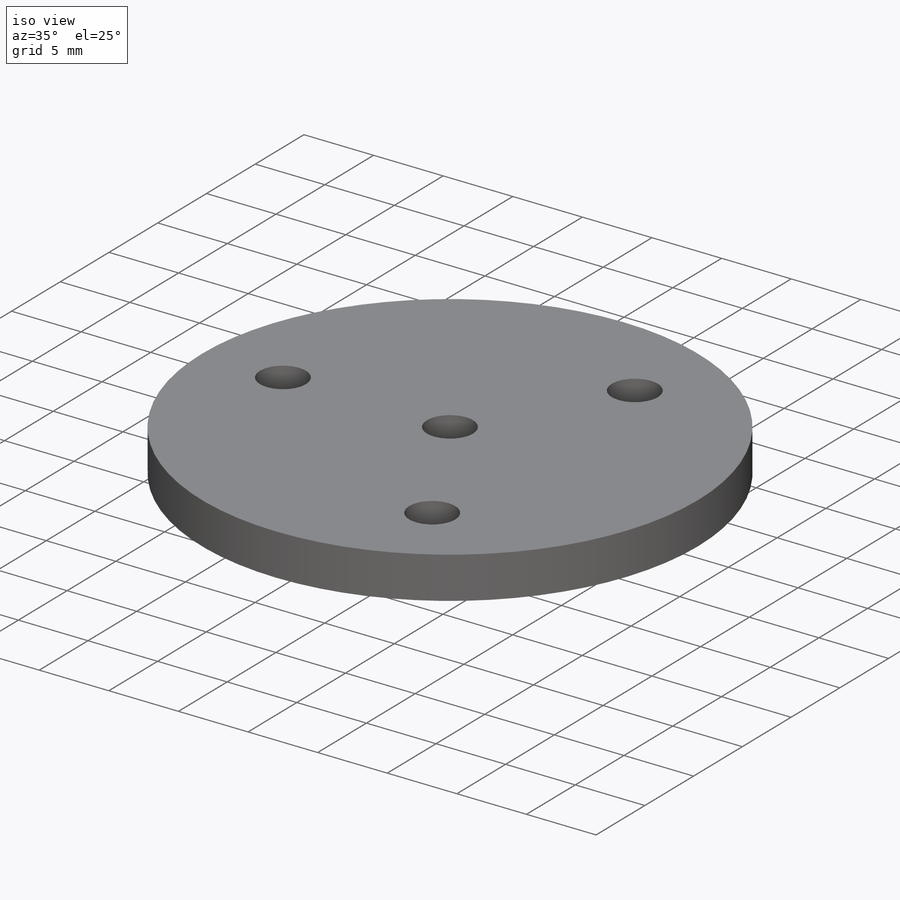
[diagram: iso view]
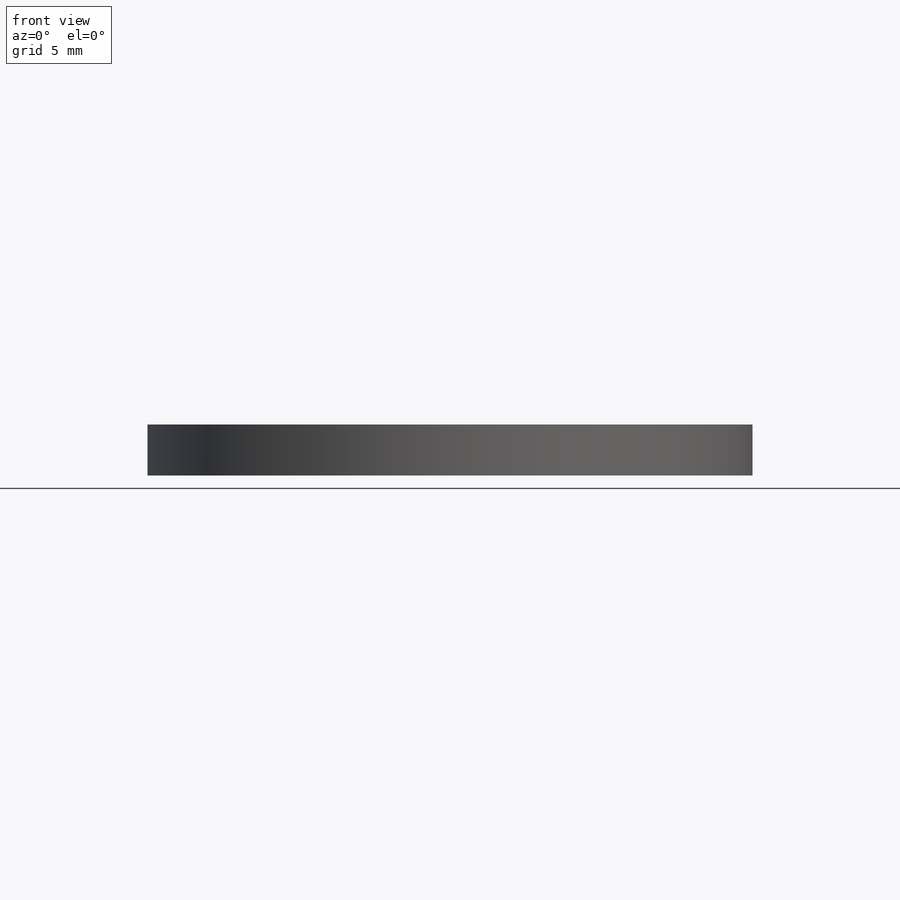
[diagram: front view]
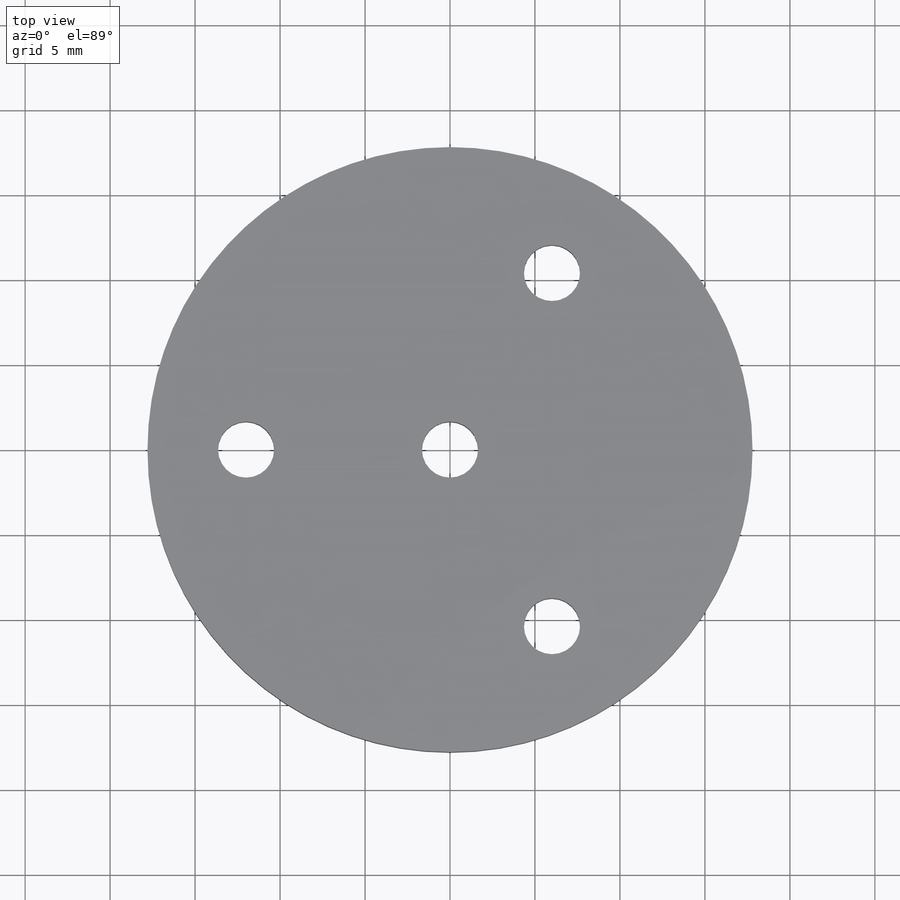
[diagram: top view]
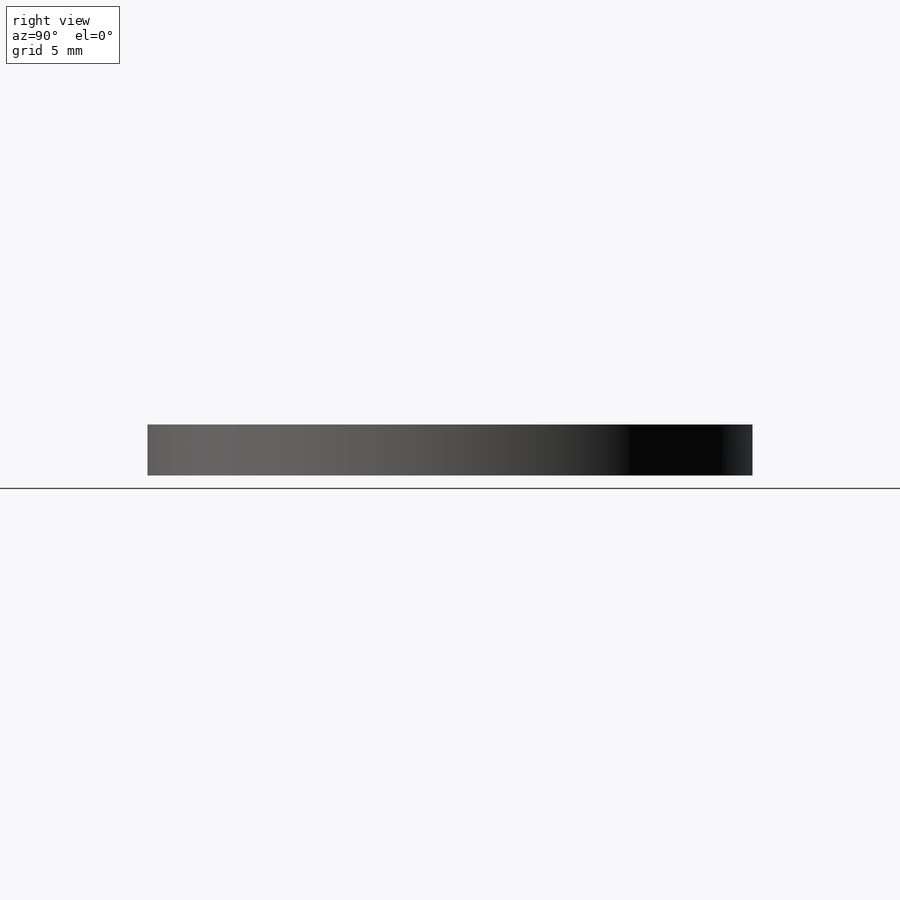
[diagram: right view]
SOLIDWORKS PART (.sldprt)
format: sldprt  version: not decoded by parser v0  size: 229,888 bytes
history: native  units: mm
features: sketch x4, thread x4, plane x3, material x1, revolve x1, cut_extrude x1, pattern_circular x1, hole x1 (+9 scaffold rows collapsed)
feature tree (25):
  scaffold x9  (default folders/planes/origin — collapsed)
  material  "1.4301 (X5CrNi18-10)"
  plane  "Vorne"
  plane  "Oben"
  plane  "Rechts"
  sketch  "Skizze1"  dims[D1=3.0mm D2=1.0mm D3=17.8mm]
  revolve  "Rotation1"  Angle=360deg
  sketch  "Skizze2"  dims[D1=2.0mm D3=7.0mm D2=12.0mm]
  cut_extrude  "Schnitt-Linear austragen1"  [1 undecoded]
  pattern_circular  "Kreismuster1"  Count=3  [1 undecoded]
  hole  "M4 Gewindebohrung1"  Diameter=3.3mm Depth=3mm
  sketch  "Skizze4"
  sketch  "Skizze3"  dims[hole-wizard template sketch: 34 standard entries collapsed; hole parameters kept: c7.D1=25.4mm c7.D2=101.6mm c7.D3=31.75mm c7.D4=~3.666174mm c7.D5=30.48mm c7.D6=~9.919017mm c8.D1=25.4mm c8.D2=101.6mm c8.D3=31.75mm c8.D4=~3.666174mm c8.Bohrerdurchmesser=3.3mm c8.Bohrungstiefe=3.0mm]
  thread  "Bohrungsgewinde1"  Diameter=4mm  [1 undecoded]
  thread  "Bohrungsgewinde2"  Diameter=4mm  [1 undecoded]
  thread  "Bohrungsgewinde3"  Diameter=4mm  [1 undecoded]
  thread  "Bohrungsgewinde4"  Diameter=4mm  [1 undecoded]
decode coverage: 10 of 12 modeling features carry decoded parameters
note: ~ marks probable driven/reference dimensions
note: 6 parameter values undecoded
note: suppression state not decoded; provenance and decode notes live in map.json
